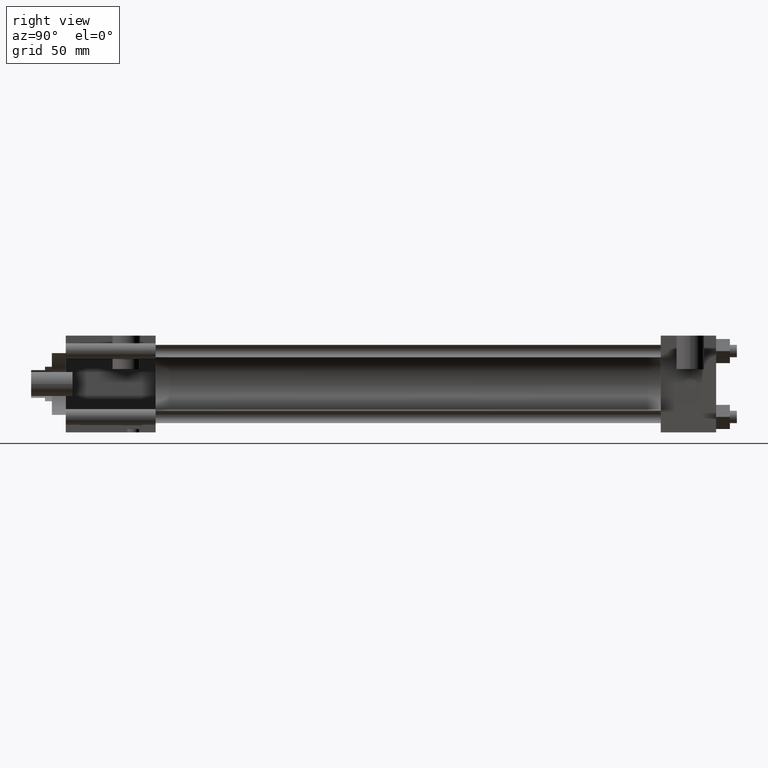
[diagram: clean part render]
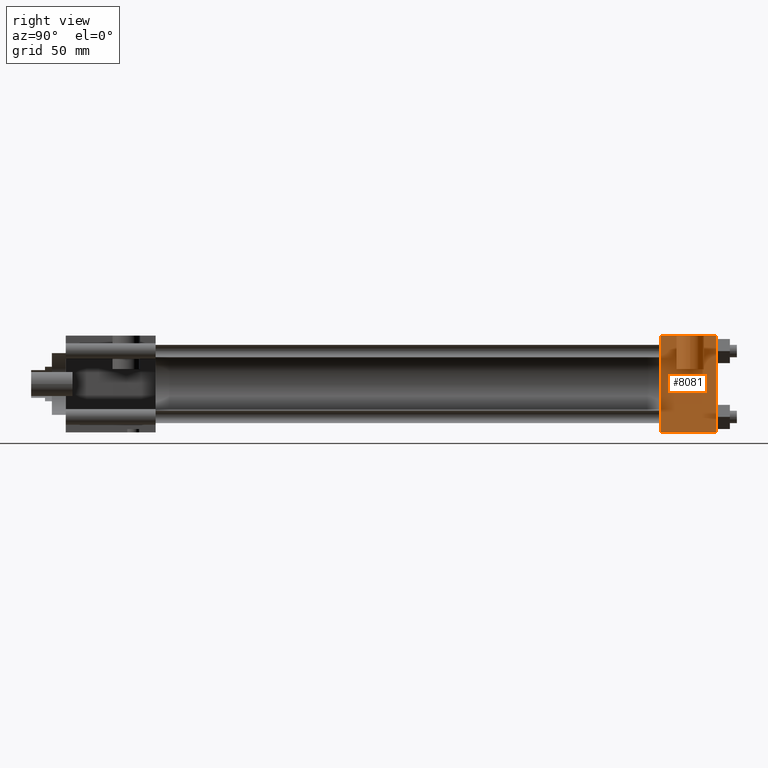
[diagram: same view with one face highlighted and labeled with its STEP entity id]
A machine part, right view. The second image highlights one B-rep face of the part: STEP entity #8081.
In plain terms, the highlighted planar face has unit normal (1, 0, 0).
Its self-contained STEP definition (entity closure, byte-faithful):
#2212=VERTEX_POINT('',#2214);
#2214=CARTESIAN_POINT('',(2.222500000E+001,3.143250000E+002,-2.222500000E+001));
#2227=VERTEX_POINT('',#2228);
#2228=CARTESIAN_POINT('',(2.222500000E+001,3.143250000E+002,2.222500000E+001));
#2229=EDGE_CURVE('',#2212,#2227,#2230,.T.);
#2230=LINE('',#2231,#2232);
#2231=CARTESIAN_POINT('',(2.222500000E+001,3.143250000E+002,-2.222500000E+001));
#2232=VECTOR('',#2233,1.0E+000);
#2233=DIRECTION('',(0.0E+000,0.0E+000,1.0E+000));
#2385=VERTEX_POINT('',#2387);
#2387=CARTESIAN_POINT('',(2.222500000E+001,2.889250000E+002,-2.222500000E+001));
#2388=EDGE_CURVE('',#2385,#2393,#2389,.T.);
#2389=LINE('',#2390,#2391);
#2390=CARTESIAN_POINT('',(2.222500000E+001,2.889250000E+002,-2.222500000E+001));
#2391=VECTOR('',#2392,1.0E+000);
#2392=DIRECTION('',(0.0E+000,0.0E+000,1.0E+000));
#2393=VERTEX_POINT('',#2394);
#2394=CARTESIAN_POINT('',(2.222500000E+001,2.889250000E+002,2.222500000E+001));
#2434=EDGE_CURVE('',#2212,#2385,#2435,.T.);
#2435=LINE('',#2436,#2437);
#2436=CARTESIAN_POINT('',(2.222500000E+001,3.143250000E+002,-2.222500000E+001));
#2437=VECTOR('',#2438,1.0E+000);
#2438=DIRECTION('',(0.0E+000,-1.0E+000,0.0E+000));
#2461=EDGE_CURVE('',#2227,#2393,#2462,.T.);
#2462=LINE('',#2463,#2464);
#2463=CARTESIAN_POINT('',(2.222500000E+001,3.143250000E+002,2.222500000E+001));
#2464=VECTOR('',#2465,1.0E+000);
#2465=DIRECTION('',(0.0E+000,-1.0E+000,0.0E+000));
#2507=FACE_OUTER_BOUND('',#2509,.T.);
#2508=FACE_BOUND('',#2510,.T.);
#2509=EDGE_LOOP('',(#2511,#2512,#2513,#2514));
#2510=EDGE_LOOP('',(#2515));
#2511=ORIENTED_EDGE('',*,*,#2388,.F.);
#2512=ORIENTED_EDGE('',*,*,#2434,.F.);
#2513=ORIENTED_EDGE('',*,*,#2229,.T.);
#2514=ORIENTED_EDGE('',*,*,#2461,.T.);
#2515=ORIENTED_EDGE('',*,*,#2516,.T.);
#2516=EDGE_CURVE('',#2522,#2522,#2517,.T.);
#2517=CIRCLE('',#2518,2.778125000E+000);
#2518=AXIS2_PLACEMENT_3D('',#2519,#2520,#2521);
#2519=CARTESIAN_POINT('',(2.222500000E+001,3.024187500E+002,0.000000000E+000));
#2520=DIRECTION('',(-1.0E+000,0.0E+000,0.0E+000));
#2521=DIRECTION('',(0.0E+000,1.0E+000,0.0E+000));
#2522=VERTEX_POINT('',#2523);
#2523=CARTESIAN_POINT('',(2.222500000E+001,3.051968750E+002,0.000000000E+000));
#2524=PLANE('',#2525);
#2525=AXIS2_PLACEMENT_3D('',#2526,#2527,#2528);
#2526=CARTESIAN_POINT('',(2.222500000E+001,3.143250000E+002,-2.222500000E+001));
#2527=DIRECTION('',(1.0E+000,0.0E+000,0.0E+000));
#2528=DIRECTION('',(0.0E+000,0.0E+000,-1.0E+000));
#8081=ADVANCED_FACE('',(#2507,#2508),#2524,.T.);